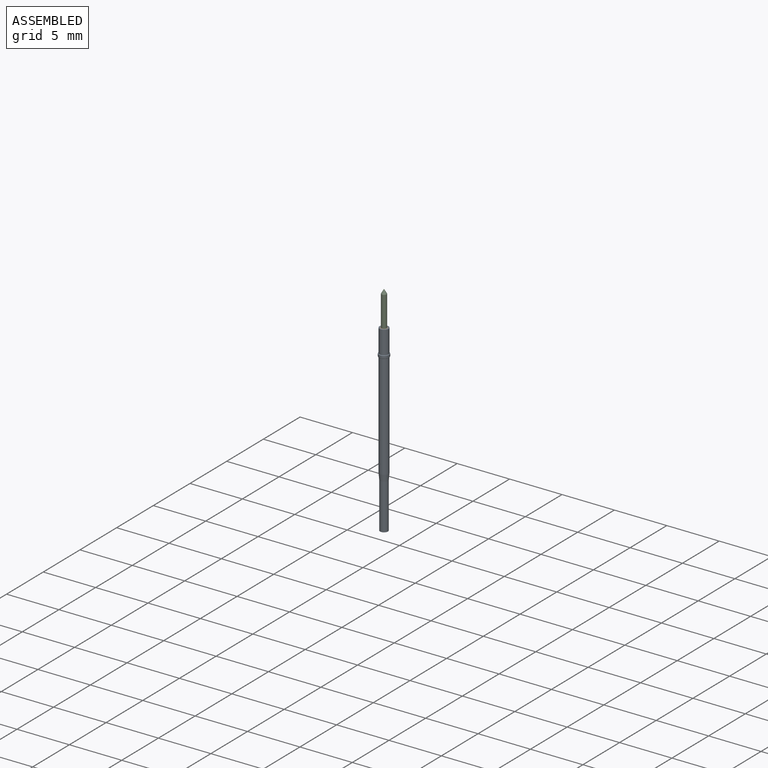
[diagram: assembled view]
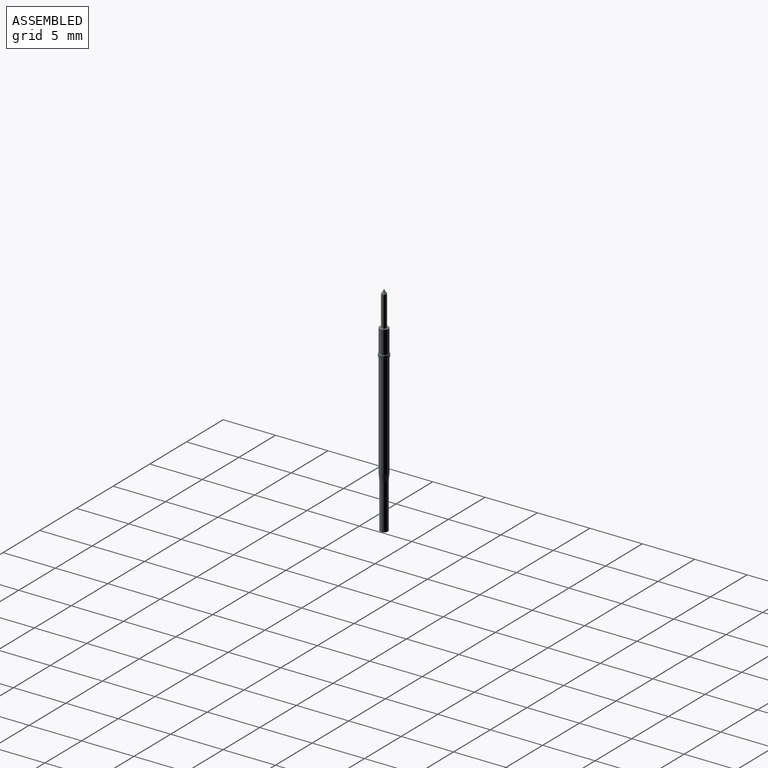
[diagram: assembled view, second angle]
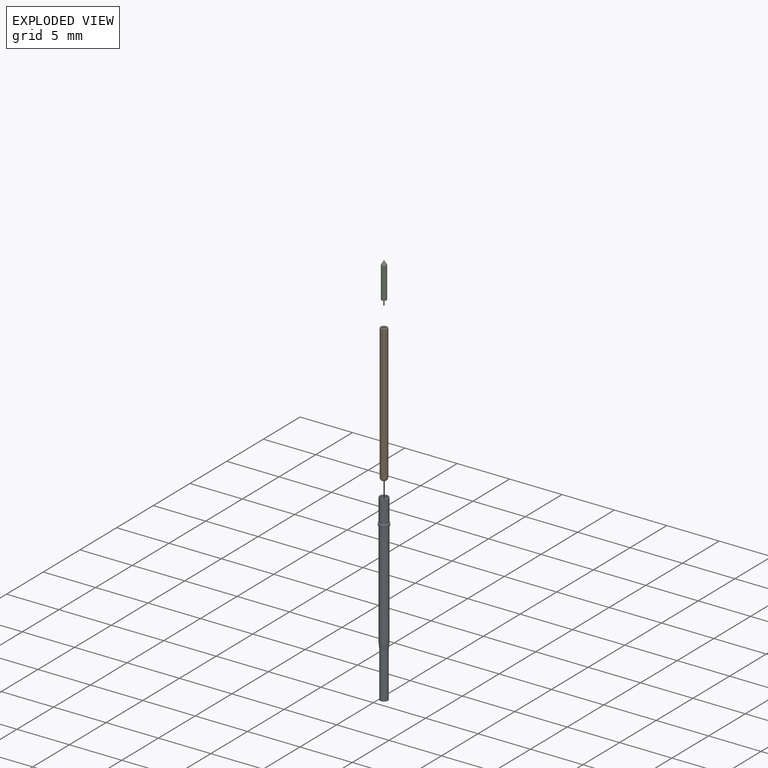
[diagram: exploded view]
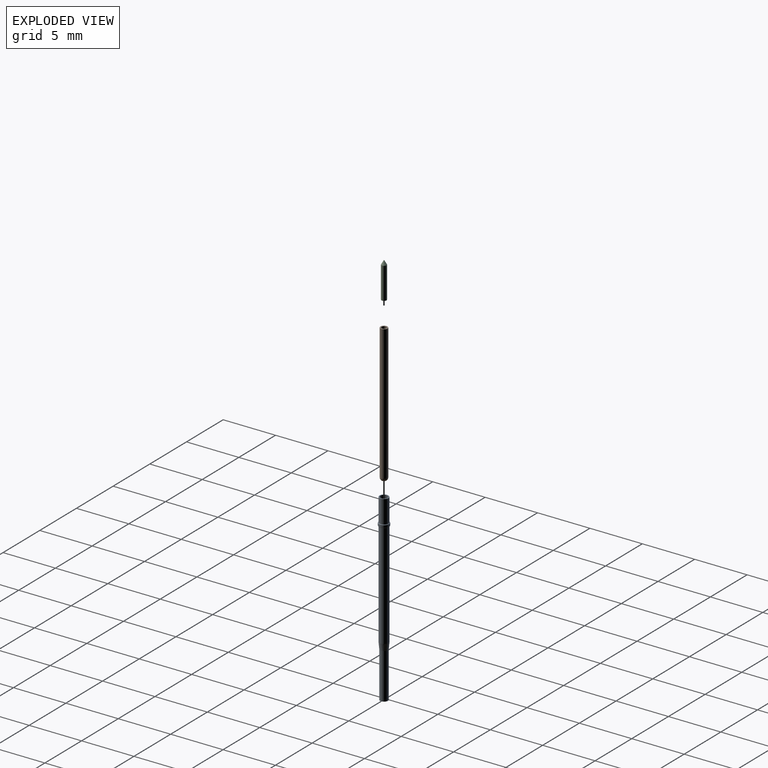
[diagram: exploded view, second angle]
ASSEMBLY  parts=3 mates=2
PART A: 12 faces, bbox 1.1x1.1x17.5 mm
  f0: cylinder r=0.38mm len=4.37mm, axis (0,0,1), area 10.3mm2, adj f7,f11
  f1: cylinder r=0.43mm len=2.2mm, axis (0,0,-1), area 5.9mm2, adj f3,f6
  f2: cylinder r=0.35mm len=17.5mm, axis (0,0,-1), area 38.5mm2, adj f3,f7
  f3: plane 0.86x0.86mm, normal (0,0,1), area 0.2mm2, adj f1,f2
  f4: plane 0.87x0.87mm, normal (0,0,-1), area 0mm2, adj f8,f9
  f5: cylinder r=0.49mm len=0.97mm, axis (0,0,-1), area 0.6mm2, adj f9,f10
  f6: plane 0.87x0.87mm, normal (0,0,1), area 0mm2, adj f1,f10
  f7: plane 0.75x0.75mm, normal (0,0,-1), area 0.1mm2, adj f0,f2
  f8: cylinder r=0.43mm len=10mm, axis (0,0,1), area 27mm2, adj f4,f11
  f9: torus R=0.43mm, axis (0,0,1), area 0.2mm2, adj f4,f5
  f10: torus R=0.43mm, axis (0,0,1), area 0.2mm2, adj f5,f6
  f11: cone r=0.43mm half-angle=5deg, axis (0,0,1), area 1.6mm2, adj f0,f8
PART B: 6 faces, bbox 0.7x0.7x13.2 mm
  f0: cylinder r=0.34mm len=12.88mm, axis (0,0,1), area 27.5mm2, adj f2,f5
  f1: plane 0.08x0.08mm, normal (0,0,-1), area 0mm2, adj f5
  f2: plane 0.68x0.68mm, normal (0,0,1), area 0.2mm2, adj f0,f3
  f3: cylinder r=0.24mm len=3.5mm, axis (0,0,1), area 5.3mm2, adj f2,f4
  f4: plane 0.48x0.48mm, normal (0,0,1), area 0.2mm2, adj f3
  f5: bspline ~0.68x0.68mm, area 0.7mm2, adj f0,f1
PART C: 3 faces, bbox 0.5x0.5x3.4 mm
  f0: cylinder r=0.24mm len=3.02mm, axis (0,0,-1), area 4.6mm2, adj f1,f2
  f1: plane 0.48x0.48mm, normal (0,0,-1), area 0.2mm2, adj f0
  f2: cone r=0mm half-angle=30deg, axis (0,0,-1), area 0.4mm2, adj f0
PLACE A rot(axis=(0.15,0.42,-0.89),0deg) t=(0.75,-4.61,-3.16)mm
PLACE B rot(axis=(0.15,0.42,-0.89),0deg) t=(0.75,-4.61,-0.66)mm
PLACE C rot(axis=(0,0,1),90deg) t=(0.75,-4.85,-0.75)mm
MATE slider C.f0 <-> B.f3  axis (0,0,-1) through (0.75,-4.61,-0.75)mm
MATE fastened A.f2 <-> B.f0  axis (0,0,1) through (0.75,-4.61,-0.66)mm
